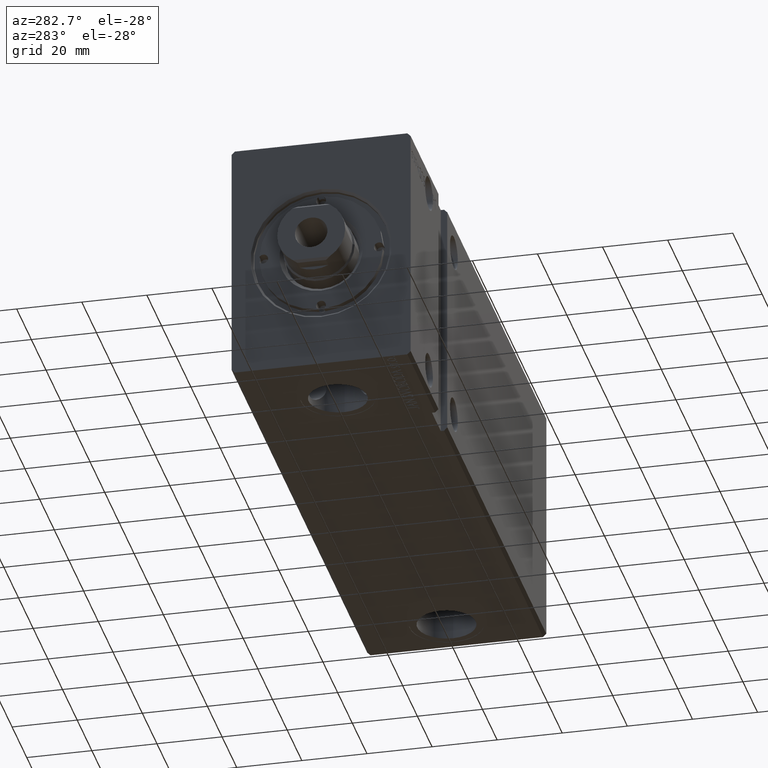
[diagram: clean part render]
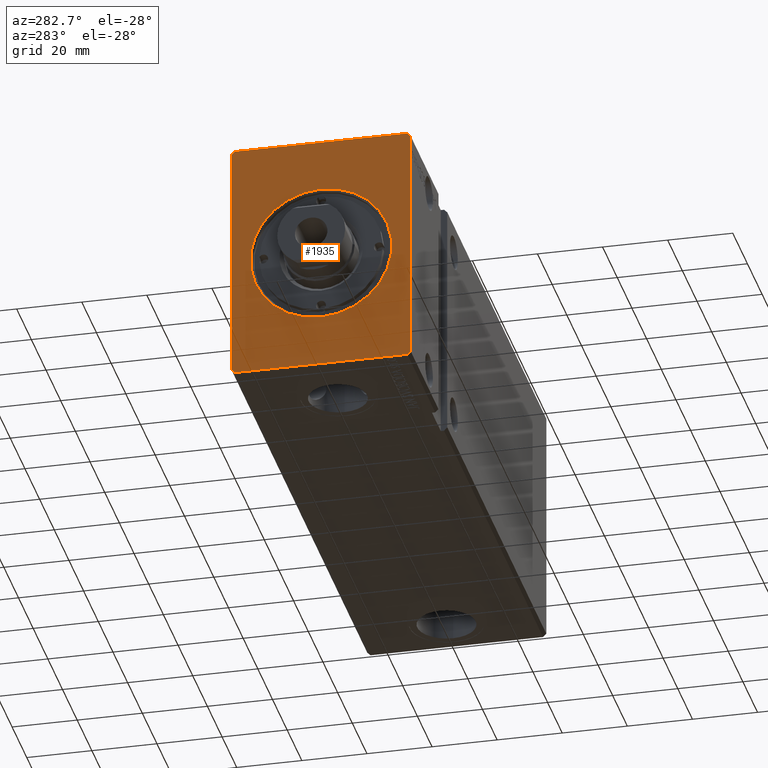
[diagram: same view with one face highlighted and labeled with its STEP entity id]
A machine part, auxiliary view. The second image highlights one B-rep face of the part: STEP entity #1935.
In plain terms, the highlighted planar face has unit normal (1, 0, 0).
Its self-contained STEP definition (entity closure, byte-faithful):
#197 = VERTEX_POINT ( 'NONE', #34093 ) ;
#357 = EDGE_LOOP ( 'NONE', ( #28943, #8155, #13090, #33989, #20836, #36891, #27512, #14519 ) ) ;
#1935 = ADVANCED_FACE ( 'NONE', ( #25262, #19841 ), #31634, .F. ) ;
#2058 = DIRECTION ( 'NONE',  ( 1.000000000000000000, 0.000000000000000000, 0.000000000000000000 ) ) ;
#2062 = CARTESIAN_POINT ( 'NONE',  ( 0.000000000000000000, 26.50000000000000711, -37.49999999999999289 ) ) ;
#2716 = EDGE_CURVE ( 'NONE', #11530, #11940, #26559, .T. ) ;
#2913 = DIRECTION ( 'NONE',  ( 0.000000000000000000, 0.7071067811865451302, -0.7071067811865500152 ) ) ;
#4353 = EDGE_CURVE ( 'NONE', #11940, #11012, #27306, .T. ) ;
#4469 = DIRECTION ( 'NONE',  ( 0.000000000000000000, 0.7071067811865474617, 0.7071067811865474617 ) ) ;
#4803 = VECTOR ( 'NONE', #21096, 1000.000000000000000 ) ;
#5267 = CARTESIAN_POINT ( 'NONE',  ( 0.000000000000000000, 0.000000000000000000, 0.000000000000000000 ) ) ;
#5338 = EDGE_CURVE ( 'NONE', #34849, #14685, #33182, .T. ) ;
#6020 = DIRECTION ( 'NONE',  ( 0.000000000000000000, 1.000000000000000000, 0.000000000000000000 ) ) ;
#6179 = LINE ( 'NONE', #36735, #26499 ) ;
#7488 = LINE ( 'NONE', #11301, #9718 ) ;
#8155 = ORIENTED_EDGE ( 'NONE', *, *, #2716, .F. ) ;
#9382 = EDGE_CURVE ( 'NONE', #26270, #36722, #24219, .T. ) ;
#9718 = VECTOR ( 'NONE', #25900, 1000.000000000000000 ) ;
#10857 = LINE ( 'NONE', #2062, #28410 ) ;
#11012 = VERTEX_POINT ( 'NONE', #38244 ) ;
#11301 = CARTESIAN_POINT ( 'NONE',  ( 0.000000000000000000, 26.50000000000000355, 37.50000000000000711 ) ) ;
#11530 = VERTEX_POINT ( 'NONE', #26516 ) ;
#11940 = VERTEX_POINT ( 'NONE', #15840 ) ;
#12643 = CARTESIAN_POINT ( 'NONE',  ( 0.000000000000000000, -27.50000000000000711, 36.50000000000000711 ) ) ;
#12965 = EDGE_CURVE ( 'NONE', #26223, #197, #28787, .T. ) ;
#13090 = ORIENTED_EDGE ( 'NONE', *, *, #21465, .F. ) ;
#14519 = ORIENTED_EDGE ( 'NONE', *, *, #24386, .F. ) ;
#14685 = VERTEX_POINT ( 'NONE', #33870 ) ;
#15840 = CARTESIAN_POINT ( 'NONE',  ( 0.000000000000000000, 27.50000000000000355, 36.50000000000000711 ) ) ;
#16848 = DIRECTION ( 'NONE',  ( 0.000000000000000000, 0.000000000000000000, -1.000000000000000000 ) ) ;
#17527 = ORIENTED_EDGE ( 'NONE', *, *, #34952, .T. ) ;
#17538 = EDGE_CURVE ( 'NONE', #18715, #26223, #6179, .T. ) ;
#17989 = DIRECTION ( 'NONE',  ( 1.000000000000000000, 0.000000000000000000, 0.000000000000000000 ) ) ;
#18715 = VERTEX_POINT ( 'NONE', #36293 ) ;
#19841 = FACE_OUTER_BOUND ( 'NONE', #357, .T. ) ;
#20617 = VECTOR ( 'NONE', #34973, 1000.000000000000000 ) ;
#20702 = LINE ( 'NONE', #36449, #39181 ) ;
#20836 = ORIENTED_EDGE ( 'NONE', *, *, #38782, .F. ) ;
#21096 = DIRECTION ( 'NONE',  ( 0.000000000000000000, -4.752667057470704875E-17, 1.000000000000000000 ) ) ;
#21465 = EDGE_CURVE ( 'NONE', #36722, #11530, #10857, .T. ) ;
#22002 = CARTESIAN_POINT ( 'NONE',  ( 0.000000000000000000, -27.50000000000000711, 36.50000000000000711 ) ) ;
#22509 = CIRCLE ( 'NONE', #32715, 21.69999999999999574 ) ;
#23783 = DIRECTION ( 'NONE',  ( 0.000000000000000000, -0.7071067811865474617, -0.7071067811865474617 ) ) ;
#24219 = LINE ( 'NONE', #36376, #26388 ) ;
#24301 = CARTESIAN_POINT ( 'NONE',  ( 0.000000000000000000, 27.50000000000000355, 36.50000000000000711 ) ) ;
#24386 = EDGE_CURVE ( 'NONE', #11012, #18715, #7488, .T. ) ;
#24884 = AXIS2_PLACEMENT_3D ( 'NONE', #5267, #2058, #35440 ) ;
#24989 = VECTOR ( 'NONE', #36453, 1000.000000000000114 ) ;
#25262 = FACE_BOUND ( 'NONE', #30688, .T. ) ;
#25900 = DIRECTION ( 'NONE',  ( 0.000000000000000000, -1.000000000000000000, 0.000000000000000000 ) ) ;
#26223 = VERTEX_POINT ( 'NONE', #12643 ) ;
#26264 = ORIENTED_EDGE ( 'NONE', *, *, #5338, .T. ) ;
#26270 = VERTEX_POINT ( 'NONE', #37186 ) ;
#26388 = VECTOR ( 'NONE', #6020, 1000.000000000000000 ) ;
#26499 = VECTOR ( 'NONE', #23783, 1000.000000000000114 ) ;
#26516 = CARTESIAN_POINT ( 'NONE',  ( 0.000000000000000000, 27.50000000000000711, -36.49999999999999289 ) ) ;
#26559 = LINE ( 'NONE', #38719, #4803 ) ;
#27102 = CARTESIAN_POINT ( 'NONE',  ( 0.000000000000000000, 2.657483554149755949E-15, -21.69999999999999574 ) ) ;
#27306 = LINE ( 'NONE', #24301, #24989 ) ;
#27512 = ORIENTED_EDGE ( 'NONE', *, *, #17538, .F. ) ;
#28410 = VECTOR ( 'NONE', #4469, 1000.000000000000114 ) ;
#28787 = LINE ( 'NONE', #22002, #20617 ) ;
#28943 = ORIENTED_EDGE ( 'NONE', *, *, #4353, .F. ) ;
#30688 = EDGE_LOOP ( 'NONE', ( #17527, #26264 ) ) ;
#31634 = PLANE ( 'NONE',  #38221 ) ;
#32715 = AXIS2_PLACEMENT_3D ( 'NONE', #32992, #17989, #33378 ) ;
#32992 = CARTESIAN_POINT ( 'NONE',  ( 0.000000000000000000, 0.000000000000000000, 0.000000000000000000 ) ) ;
#33182 = CIRCLE ( 'NONE', #24884, 21.69999999999999574 ) ;
#33378 = DIRECTION ( 'NONE',  ( 0.000000000000000000, 0.000000000000000000, -1.000000000000000000 ) ) ;
#33870 = CARTESIAN_POINT ( 'NONE',  ( 0.000000000000000000, 0.000000000000000000, 21.69999999999999574 ) ) ;
#33989 = ORIENTED_EDGE ( 'NONE', *, *, #9382, .F. ) ;
#34093 = CARTESIAN_POINT ( 'NONE',  ( 0.000000000000000000, -27.50000000000000355, -36.49999999999998579 ) ) ;
#34849 = VERTEX_POINT ( 'NONE', #27102 ) ;
#34952 = EDGE_CURVE ( 'NONE', #14685, #34849, #22509, .T. ) ;
#34973 = DIRECTION ( 'NONE',  ( 0.000000000000000000, 4.752667057470705491E-17, -1.000000000000000000 ) ) ;
#35440 = DIRECTION ( 'NONE',  ( 0.000000000000000000, 0.000000000000000000, -1.000000000000000000 ) ) ;
#36293 = CARTESIAN_POINT ( 'NONE',  ( 0.000000000000000000, -26.50000000000000711, 37.50000000000000711 ) ) ;
#36376 = CARTESIAN_POINT ( 'NONE',  ( 0.000000000000000000, -26.50000000000000355, -37.49999999999999289 ) ) ;
#36449 = CARTESIAN_POINT ( 'NONE',  ( 0.000000000000000000, -27.50000000000000355, -36.49999999999998579 ) ) ;
#36453 = DIRECTION ( 'NONE',  ( 0.000000000000000000, -0.7071067811865474617, 0.7071067811865474617 ) ) ;
#36722 = VERTEX_POINT ( 'NONE', #39405 ) ;
#36735 = CARTESIAN_POINT ( 'NONE',  ( 0.000000000000000000, -26.50000000000000711, 37.50000000000000711 ) ) ;
#36891 = ORIENTED_EDGE ( 'NONE', *, *, #12965, .F. ) ;
#37186 = CARTESIAN_POINT ( 'NONE',  ( 0.000000000000000000, -26.50000000000000355, -37.49999999999999289 ) ) ;
#37221 = CARTESIAN_POINT ( 'NONE',  ( 0.000000000000000000, 0.000000000000000000, 0.000000000000000000 ) ) ;
#37415 = DIRECTION ( 'NONE',  ( 1.000000000000000000, 0.000000000000000000, 0.000000000000000000 ) ) ;
#38221 = AXIS2_PLACEMENT_3D ( 'NONE', #37221, #37415, #16848 ) ;
#38244 = CARTESIAN_POINT ( 'NONE',  ( 0.000000000000000000, 26.50000000000000355, 37.50000000000000711 ) ) ;
#38719 = CARTESIAN_POINT ( 'NONE',  ( 0.000000000000000000, 27.50000000000000711, -36.49999999999999289 ) ) ;
#38782 = EDGE_CURVE ( 'NONE', #197, #26270, #20702, .T. ) ;
#39181 = VECTOR ( 'NONE', #2913, 1000.000000000000114 ) ;
#39405 = CARTESIAN_POINT ( 'NONE',  ( 0.000000000000000000, 26.50000000000000711, -37.49999999999999289 ) ) ;